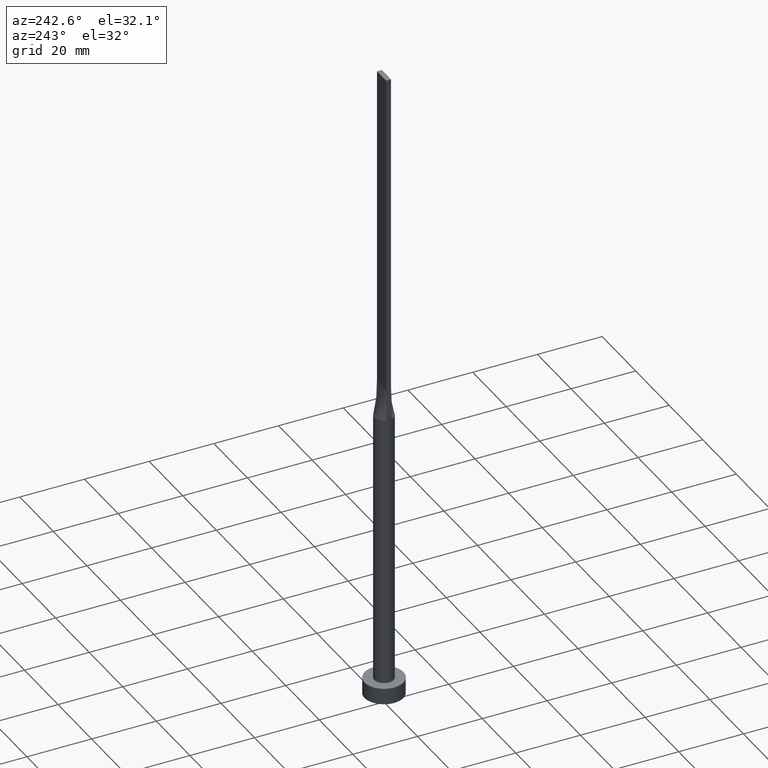
[diagram: clean part render]
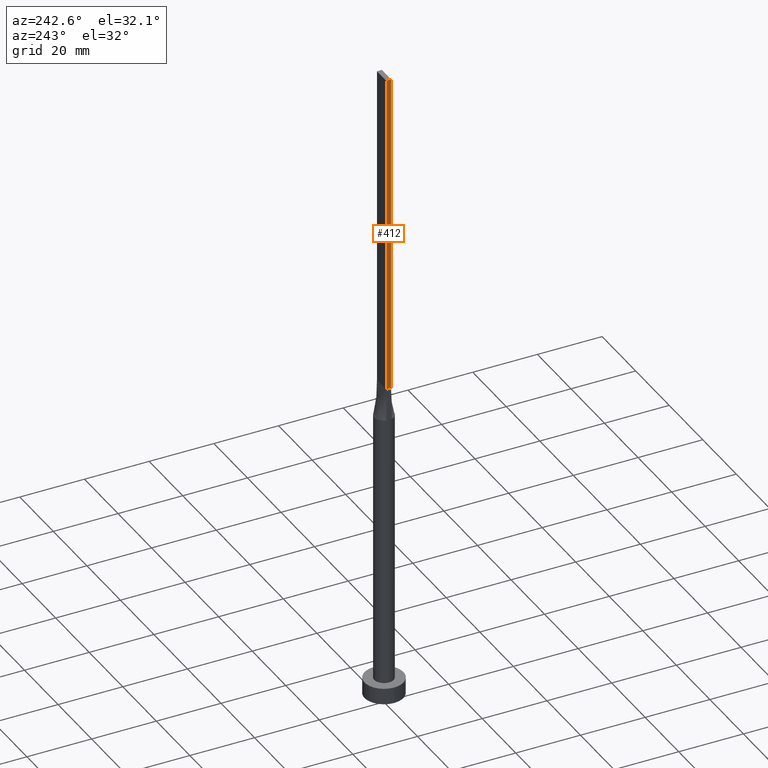
[diagram: same view with one face highlighted and labeled with its STEP entity id]
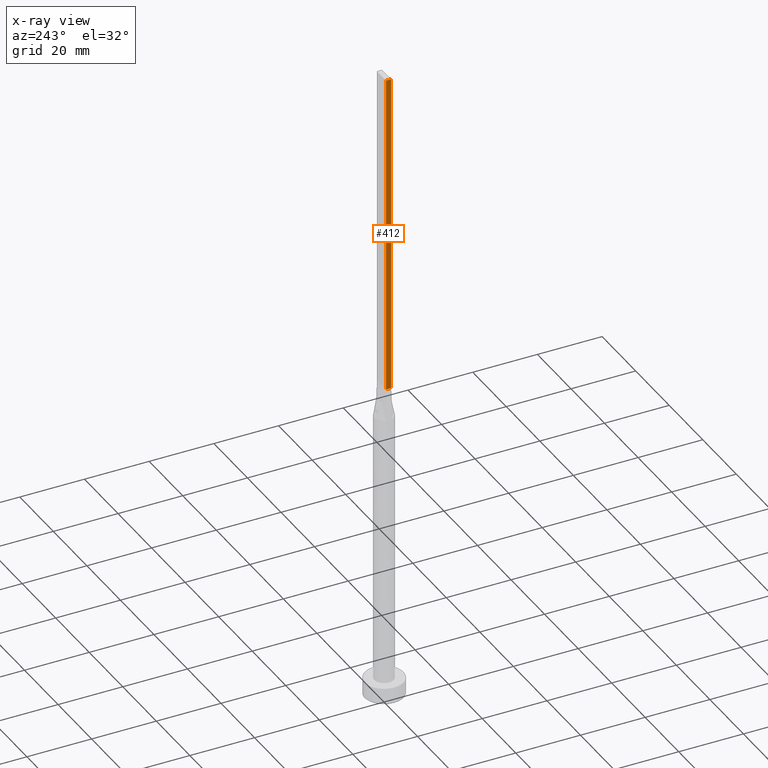
[diagram: x-ray of the same camera — body ghosted, the highlighted face saturated]
A machine part, auxiliary view. The second image highlights one B-rep face of the part: STEP entity #412.
The next image is the same camera in x-ray: the body ghosted, the highlighted face saturated — about 0% of this face is hidden behind the body in this view.
In plain terms, the highlighted planar face has unit normal (1, 0, -0).
Its self-contained STEP definition (entity closure, byte-faithful):
#12 = VERTEX_POINT ( 'NONE', #153 ) ;
#21 = CARTESIAN_POINT ( 'NONE',  ( -2.750000000000000000, 0.7500000000000002220, 100.0000000000000000 ) ) ;
#49 = CARTESIAN_POINT ( 'NONE',  ( -2.750000000000000000, 0.7500000000000002220, 200.0000000000000000 ) ) ;
#59 = LINE ( 'NONE', #508, #188 ) ;
#93 = DIRECTION ( 'NONE',  ( -0.000000000000000000, -0.000000000000000000, -1.000000000000000000 ) ) ;
#105 = EDGE_CURVE ( 'NONE', #545, #116, #59, .T. ) ;
#106 = EDGE_LOOP ( 'NONE', ( #302, #168, #338, #176 ) ) ;
#115 = CARTESIAN_POINT ( 'NONE',  ( -2.750000000000000000, -0.7499999999999994449, 200.0000000000000000 ) ) ;
#116 = VERTEX_POINT ( 'NONE', #21 ) ;
#133 = VERTEX_POINT ( 'NONE', #115 ) ;
#136 = LINE ( 'NONE', #396, #427 ) ;
#153 = CARTESIAN_POINT ( 'NONE',  ( -2.750000000000000000, -0.7499999999999994449, 100.0000000000000000 ) ) ;
#157 = PLANE ( 'NONE',  #510 ) ;
#160 = DIRECTION ( 'NONE',  ( 1.000000000000000000, 0.000000000000000000, -0.000000000000000000 ) ) ;
#167 = LINE ( 'NONE', #566, #442 ) ;
#168 = ORIENTED_EDGE ( 'NONE', *, *, #312, .F. ) ;
#176 = ORIENTED_EDGE ( 'NONE', *, *, #105, .T. ) ;
#183 = CARTESIAN_POINT ( 'NONE',  ( -2.750000000000000000, 0.7500000000000002220, 200.0000000000000000 ) ) ;
#188 = VECTOR ( 'NONE', #501, 1000.000000000000000 ) ;
#191 = EDGE_CURVE ( 'NONE', #116, #12, #167, .T. ) ;
#199 = DIRECTION ( 'NONE',  ( -0.000000000000000000, 0.000000000000000000, -1.000000000000000000 ) ) ;
#232 = EDGE_CURVE ( 'NONE', #545, #133, #490, .T. ) ;
#302 = ORIENTED_EDGE ( 'NONE', *, *, #191, .T. ) ;
#312 = EDGE_CURVE ( 'NONE', #133, #12, #136, .T. ) ;
#334 = VECTOR ( 'NONE', #357, 1000.000000000000000 ) ;
#338 = ORIENTED_EDGE ( 'NONE', *, *, #232, .F. ) ;
#357 = DIRECTION ( 'NONE',  ( 0.000000000000000000, -1.000000000000000000, 0.000000000000000000 ) ) ;
#396 = CARTESIAN_POINT ( 'NONE',  ( -2.750000000000000000, -0.7499999999999994449, 200.0000000000000000 ) ) ;
#412 = ADVANCED_FACE ( 'NONE', ( #454 ), #157, .F. ) ;
#422 = CARTESIAN_POINT ( 'NONE',  ( -2.750000000000000000, 0.7500000000000002220, 200.0000000000000000 ) ) ;
#427 = VECTOR ( 'NONE', #93, 1000.000000000000000 ) ;
#442 = VECTOR ( 'NONE', #481, 1000.000000000000000 ) ;
#454 = FACE_OUTER_BOUND ( 'NONE', #106, .T. ) ;
#481 = DIRECTION ( 'NONE',  ( 0.000000000000000000, -1.000000000000000000, 0.000000000000000000 ) ) ;
#490 = LINE ( 'NONE', #183, #334 ) ;
#501 = DIRECTION ( 'NONE',  ( -0.000000000000000000, -0.000000000000000000, -1.000000000000000000 ) ) ;
#508 = CARTESIAN_POINT ( 'NONE',  ( -2.750000000000000000, 0.7500000000000002220, 200.0000000000000000 ) ) ;
#510 = AXIS2_PLACEMENT_3D ( 'NONE', #422, #160, #199 ) ;
#545 = VERTEX_POINT ( 'NONE', #49 ) ;
#566 = CARTESIAN_POINT ( 'NONE',  ( -2.750000000000000000, 0.7500000000000002220, 100.0000000000000000 ) ) ;